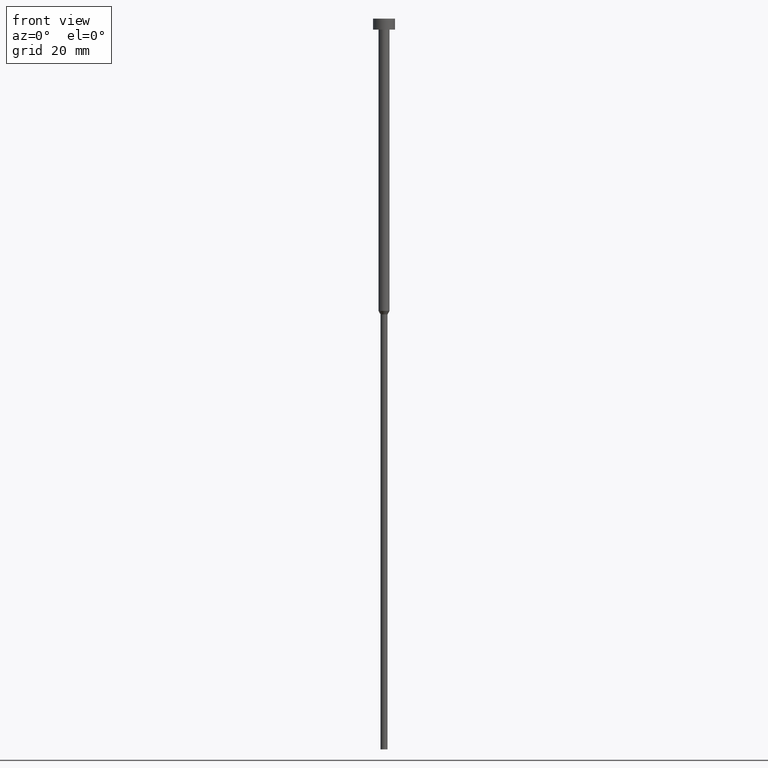
[diagram: clean part render]
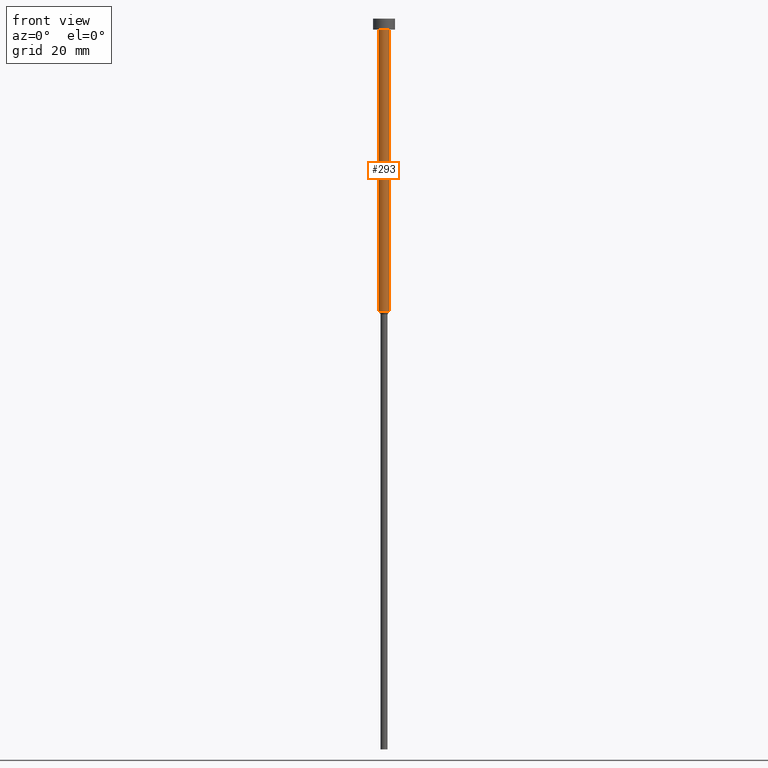
[diagram: same view with one face highlighted and labeled with its STEP entity id]
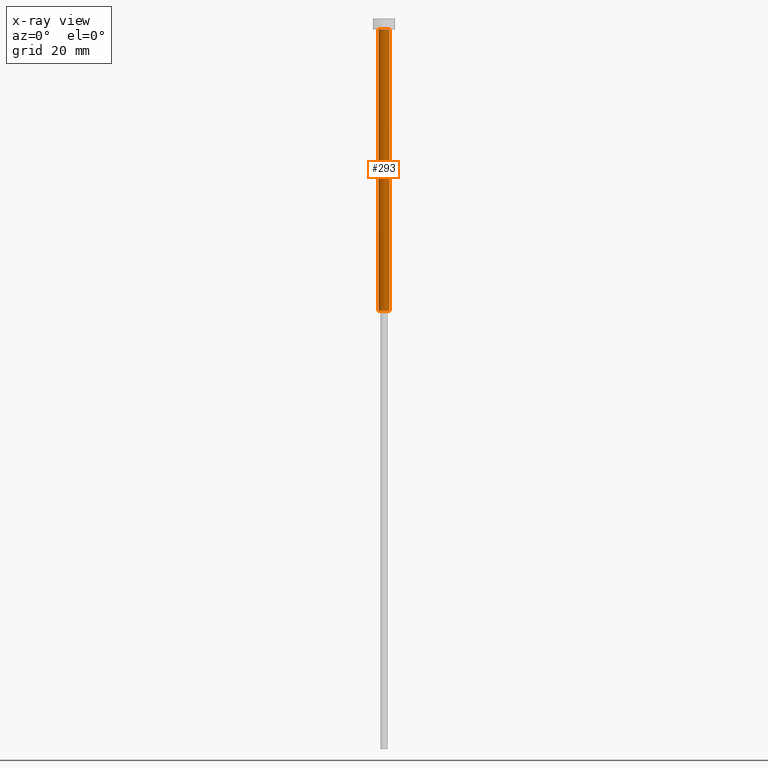
[diagram: x-ray of the same camera — body ghosted, the highlighted face saturated]
A machine part, front view. The second image highlights one B-rep face of the part: STEP entity #293.
The next image is the same camera in x-ray: the body ghosted, the highlighted face saturated — about 0% of this face is hidden behind the body in this view.
In plain terms, the highlighted cylindrical surface (edge-blend (fillet) strip) has radius 1.5 mm, axis along (-0, -0, 1).
Its self-contained STEP definition (entity closure, byte-faithful):
#13 = EDGE_CURVE ( 'NONE', #196, #27, #108, .T. ) ;
#24 = LINE ( 'NONE', #245, #55 ) ;
#27 = VERTEX_POINT ( 'NONE', #278 ) ;
#42 = EDGE_CURVE ( 'NONE', #196, #355, #116, .T. ) ;
#55 = VECTOR ( 'NONE', #218, 1000.000000000000000 ) ;
#84 = CYLINDRICAL_SURFACE ( 'NONE', #247, 1.500000000000000000 ) ;
#108 = CIRCLE ( 'NONE', #252, 1.500000000000000000 ) ;
#112 = ORIENTED_EDGE ( 'NONE', *, *, #234, .T. ) ;
#113 = ORIENTED_EDGE ( 'NONE', *, *, #152, .F. ) ;
#116 = LINE ( 'NONE', #175, #159 ) ;
#122 = CARTESIAN_POINT ( 'NONE',  ( 0.000000000000000000, 0.000000000000000000, -80.00000000000000000 ) ) ;
#123 = AXIS2_PLACEMENT_3D ( 'NONE', #239, #125, #237 ) ;
#125 = DIRECTION ( 'NONE',  ( -0.000000000000000000, -0.000000000000000000, 1.000000000000000000 ) ) ;
#142 = CARTESIAN_POINT ( 'NONE',  ( -1.500000000000000000, 1.836970198721029934E-16, -3.000000000000000888 ) ) ;
#152 = EDGE_CURVE ( 'NONE', #355, #165, #276, .T. ) ;
#159 = VECTOR ( 'NONE', #226, 1000.000000000000000 ) ;
#162 = CARTESIAN_POINT ( 'NONE',  ( 0.000000000000000000, 0.000000000000000000, 0.000000000000000000 ) ) ;
#165 = VERTEX_POINT ( 'NONE', #349 ) ;
#175 = CARTESIAN_POINT ( 'NONE',  ( -1.500000000000000000, 1.836970198721029934E-16, 0.000000000000000000 ) ) ;
#196 = VERTEX_POINT ( 'NONE', #321 ) ;
#214 = DIRECTION ( 'NONE',  ( 1.000000000000000000, 0.000000000000000000, 0.000000000000000000 ) ) ;
#217 = ORIENTED_EDGE ( 'NONE', *, *, #42, .F. ) ;
#218 = DIRECTION ( 'NONE',  ( -0.000000000000000000, -0.000000000000000000, 1.000000000000000000 ) ) ;
#224 = DIRECTION ( 'NONE',  ( -0.000000000000000000, -0.000000000000000000, 1.000000000000000000 ) ) ;
#226 = DIRECTION ( 'NONE',  ( -0.000000000000000000, -0.000000000000000000, 1.000000000000000000 ) ) ;
#234 = EDGE_CURVE ( 'NONE', #27, #165, #24, .T. ) ;
#237 = DIRECTION ( 'NONE',  ( 1.000000000000000000, 0.000000000000000000, 0.000000000000000000 ) ) ;
#239 = CARTESIAN_POINT ( 'NONE',  ( 0.000000000000000000, 0.000000000000000000, -3.000000000000000888 ) ) ;
#245 = CARTESIAN_POINT ( 'NONE',  ( 1.500000000000000000, 0.000000000000000000, 0.000000000000000000 ) ) ;
#247 = AXIS2_PLACEMENT_3D ( 'NONE', #162, #267, #214 ) ;
#252 = AXIS2_PLACEMENT_3D ( 'NONE', #122, #224, #309 ) ;
#267 = DIRECTION ( 'NONE',  ( -0.000000000000000000, -0.000000000000000000, 1.000000000000000000 ) ) ;
#270 = EDGE_LOOP ( 'NONE', ( #217, #301, #112, #113 ) ) ;
#272 = FACE_OUTER_BOUND ( 'NONE', #270, .T. ) ;
#276 = CIRCLE ( 'NONE', #123, 1.500000000000000000 ) ;
#278 = CARTESIAN_POINT ( 'NONE',  ( 1.500000000000000000, 0.000000000000000000, -80.00000000000000000 ) ) ;
#293 = ADVANCED_FACE ( 'NONE', ( #272 ), #84, .T. ) ;
#301 = ORIENTED_EDGE ( 'NONE', *, *, #13, .T. ) ;
#309 = DIRECTION ( 'NONE',  ( 1.000000000000000000, 0.000000000000000000, 0.000000000000000000 ) ) ;
#321 = CARTESIAN_POINT ( 'NONE',  ( -1.500000000000000000, 1.836970198721029934E-16, -80.00000000000000000 ) ) ;
#349 = CARTESIAN_POINT ( 'NONE',  ( 1.500000000000000000, 0.000000000000000000, -3.000000000000000888 ) ) ;
#355 = VERTEX_POINT ( 'NONE', #142 ) ;